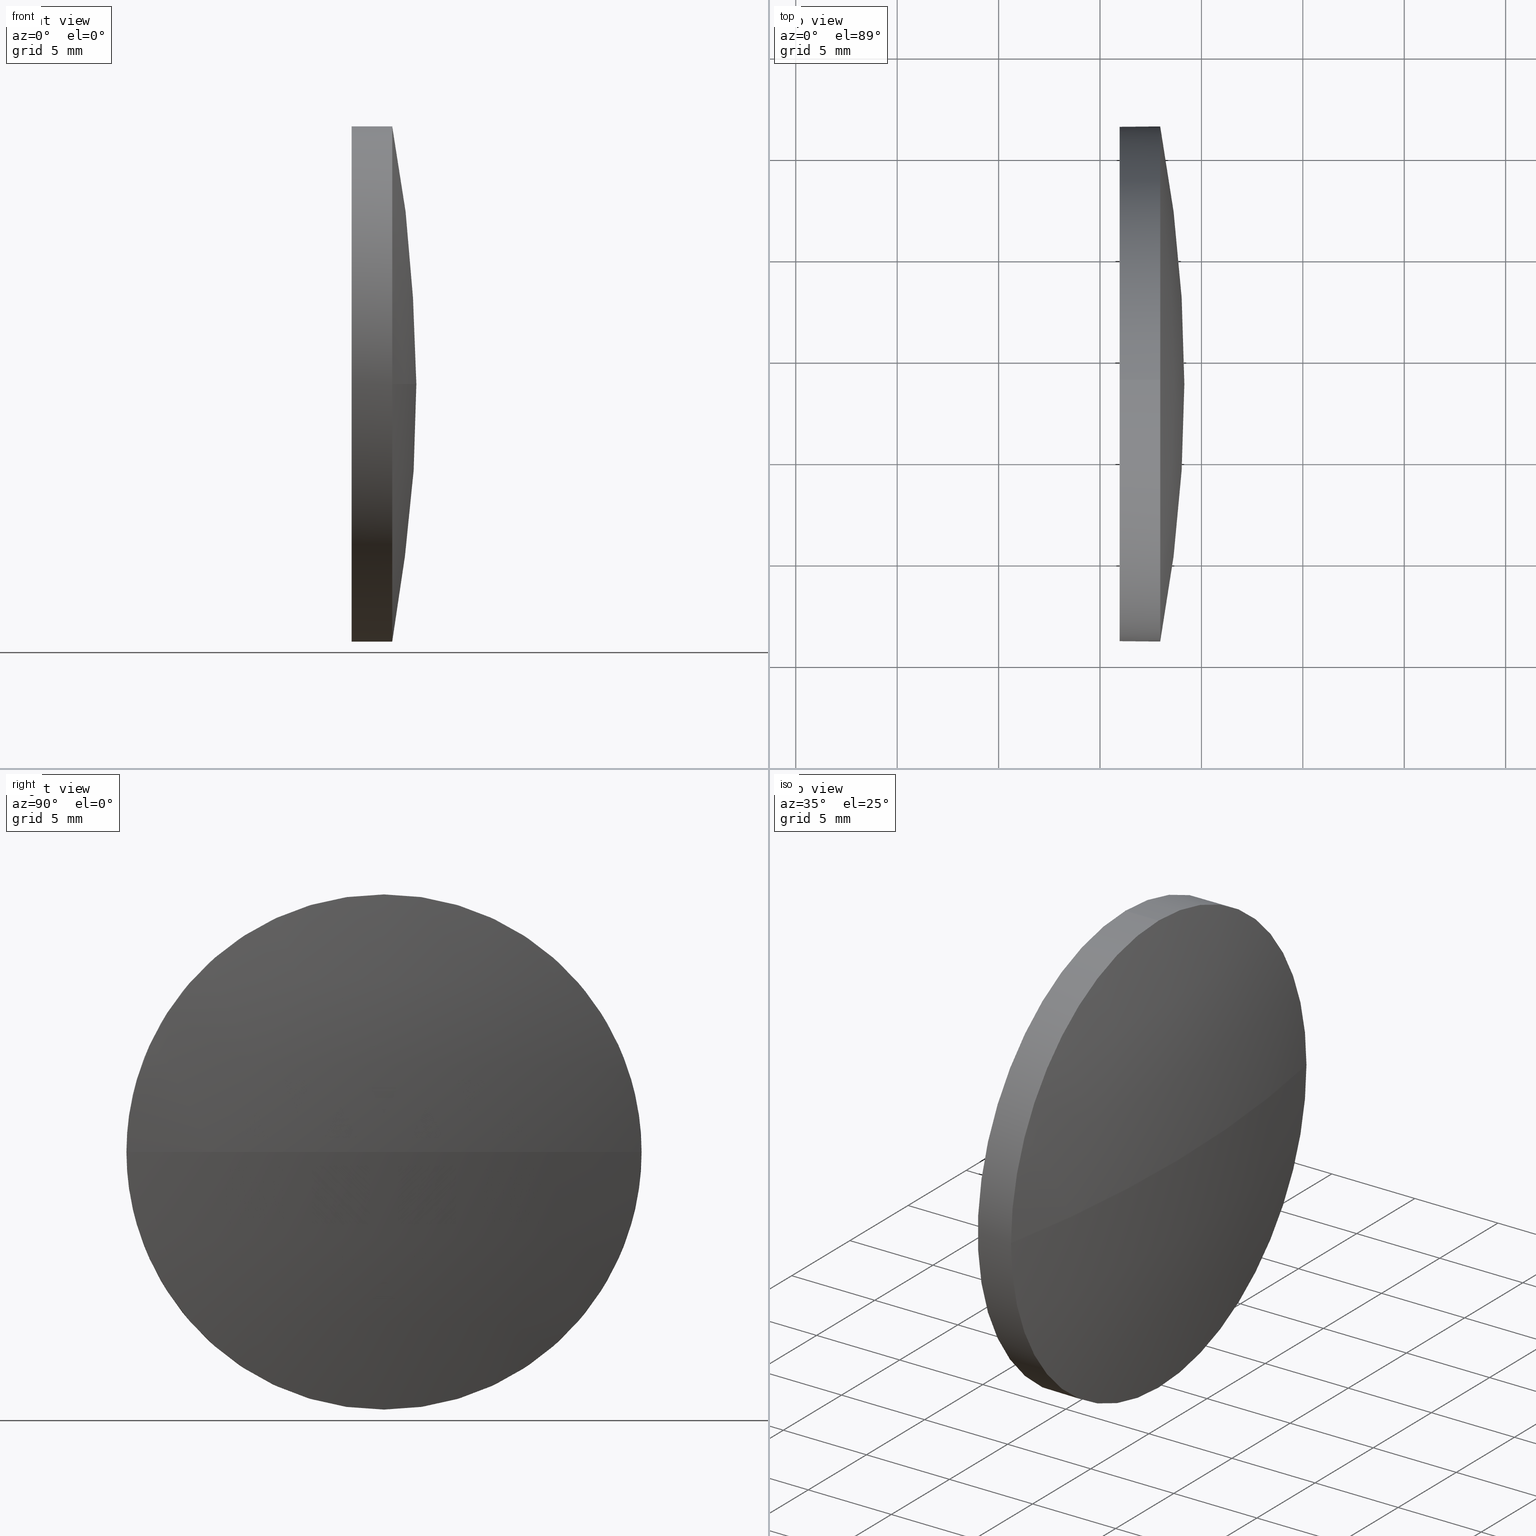
[diagram: canonical four-view strip — front | top / right | iso, engineering-drawing reading convention]
A machine part, canonical four-view strip (front | top / right | iso — engineering-drawing reading convention). The complete STEP part file that produces these views, byte-faithful:
ISO-10303-21;
HEADER;
FILE_DESCRIPTION (( 'STEP AP214' ),
    '1' );
FILE_NAME ('100377.STEP',
    '2019-06-04T06:58:32',
    ( '' ),
    ( '' ),
    'SwSTEP 2.0',
    'SolidWorks 2016',
    '' );
FILE_SCHEMA (( 'AUTOMOTIVE_DESIGN' ));
ENDSEC;

DATA;
#1 =( GEOMETRIC_REPRESENTATION_CONTEXT ( 3 ) GLOBAL_UNCERTAINTY_ASSIGNED_CONTEXT ( ( #128 ) ) GLOBAL_UNIT_ASSIGNED_CONTEXT ( ( #167, #92, #14 ) ) REPRESENTATION_CONTEXT ( 'NONE', 'WORKASPACE' ) );
#2 = EDGE_LOOP ( 'NONE', ( #68, #12, #100, #22, #185 ) ) ;
#3 = CIRCLE ( 'NONE', #67, 68.36390756302523600 ) ;
#4 = PRESENTATION_LAYER_ASSIGNMENT (  '', '', ( #24 ) ) ;
#5 = ORIENTED_EDGE ( 'NONE', *, *, #27, .F. ) ;
#6 = DIRECTION ( 'NONE',  ( 0.0000000000000000000, -1.224646799147353200E-016, 1.000000000000000000 ) ) ;
#7 = ORIENTED_EDGE ( 'NONE', *, *, #141, .F. ) ;
#8 = CARTESIAN_POINT ( 'NONE',  ( 610.2638272771673700, 203.7470888787178500, 12.70000000000001700 ) ) ;
#9 = AXIS2_PLACEMENT_3D ( 'NONE', #133, #177, #21 ) ;
#10 = CARTESIAN_POINT ( 'NONE',  ( 617.9685008246222000, 203.7470888787178500, -12.70000000000001700 ) ) ;
#11 = MANIFOLD_SOLID_BREP ( '��ת1', #32 ) ;
#12 = ORIENTED_EDGE ( 'NONE', *, *, #69, .T. ) ;
#13 = DIRECTION ( 'NONE',  ( -1.000000000000000000, -0.0000000000000000000, -0.0000000000000000000 ) ) ;
#14 =( NAMED_UNIT ( * ) SI_UNIT ( $, .STERADIAN. ) SOLID_ANGLE_UNIT ( ) );
#15 = DIRECTION ( 'NONE',  ( -1.000000000000000000, 0.0000000000000000000, 0.0000000000000000000 ) ) ;
#16 = CARTESIAN_POINT ( 'NONE',  ( 610.2638272771673700, 203.7470888787178500, 0.0000000000000000000 ) ) ;
#17 = DIRECTION ( 'NONE',  ( 0.0000000000000000000, 0.0000000000000000000, -1.000000000000000000 ) ) ;
#18 = FACE_OUTER_BOUND ( 'NONE', #2, .T. ) ;
#19 = CARTESIAN_POINT ( 'NONE',  ( 615.9685008246222000, 203.7470888787178500, 12.70000000000001700 ) ) ;
#20 = EDGE_CURVE ( 'NONE', #103, #181, #115, .T. ) ;
#21 = DIRECTION ( 'NONE',  ( 0.0000000000000000000, 0.0000000000000000000, 1.000000000000000000 ) ) ;
#22 = ORIENTED_EDGE ( 'NONE', *, *, #112, .F. ) ;
#23 = PRESENTATION_STYLE_ASSIGNMENT (( #60 ) ) ;
#24 = STYLED_ITEM ( 'NONE', ( #81 ), #11 ) ;
#25 = PLANE ( 'NONE',  #146 ) ;
#26 = FILL_AREA_STYLE_COLOUR ( '', #44 ) ;
#27 = EDGE_CURVE ( 'NONE', #150, #35, #111, .T. ) ;
#28 = ADVANCED_BREP_SHAPE_REPRESENTATION ( '100377', ( #11, #122 ), #110 ) ;
#29 = VECTOR ( 'NONE', #87, 1000.000000000000000 ) ;
#30 = ORIENTED_EDGE ( 'NONE', *, *, #40, .F. ) ;
#31 = SURFACE_STYLE_USAGE ( .BOTH. , #161 ) ;
#32 = CLOSED_SHELL ( 'NONE', ( #170, #173, #97, #144, #184 ) ) ;
#33 = DIRECTION ( 'NONE',  ( 0.0000000000000000000, -1.000000000000000000, -1.224646799147353000E-016 ) ) ;
#34 = DIRECTION ( 'NONE',  ( 0.0000000000000000000, -1.000000000000000000, 0.0000000000000000000 ) ) ;
#35 = VERTEX_POINT ( 'NONE', #179 ) ;
#36 = DIRECTION ( 'NONE',  ( 1.000000000000000000, 0.0000000000000000000, 0.0000000000000000000 ) ) ;
#37 = CARTESIAN_POINT ( 'NONE',  ( 617.9685008246222000, 203.7470888787178500, 0.0000000000000000000 ) ) ;
#38 = CARTESIAN_POINT ( 'NONE',  ( 617.9685008246222000, 203.7470888787178500, 0.0000000000000000000 ) ) ;
#39 = VECTOR ( 'NONE', #178, 1000.000000000000000 ) ;
#40 = EDGE_CURVE ( 'NONE', #43, #85, #156, .T. ) ;
#41 = MECHANICAL_DESIGN_GEOMETRIC_PRESENTATION_REPRESENTATION (  '', ( #24 ), #46 ) ;
#42 = EDGE_LOOP ( 'NONE', ( #175, #96 ) ) ;
#43 = VERTEX_POINT ( 'NONE', #48 ) ;
#44 = COLOUR_RGB ( '',1.000000000000000000, 1.000000000000000000, 1.000000000000000000 ) ;
#45 = ORIENTED_EDGE ( 'NONE', *, *, #174, .T. ) ;
#46 =( GEOMETRIC_REPRESENTATION_CONTEXT ( 3 ) GLOBAL_UNCERTAINTY_ASSIGNED_CONTEXT ( ( #155 ) ) GLOBAL_UNIT_ASSIGNED_CONTEXT ( ( #160, #132, #149 ) ) REPRESENTATION_CONTEXT ( 'NONE', 'WORKASPACE' ) );
#47 = COLOUR_RGB ( '',1.000000000000000000, 1.000000000000000000, 1.000000000000000000 ) ;
#48 = CARTESIAN_POINT ( 'NONE',  ( 615.9685008246222000, 203.7470888787178500, -12.70000000000001700 ) ) ;
#49 = AXIS2_PLACEMENT_3D ( 'NONE', #72, #71, #147 ) ;
#50 = DIRECTION ( 'NONE',  ( -1.000000000000000000, -0.0000000000000000000, -0.0000000000000000000 ) ) ;
#51 = APPLICATION_PROTOCOL_DEFINITION ( 'draft international standard', 'automotive_design', 1998, #140 ) ;
#52 = CARTESIAN_POINT ( 'NONE',  ( 617.9685008246222000, 216.4470888787178900, 1.555301434917140000E-015 ) ) ;
#53 = DIRECTION ( 'NONE',  ( 0.0000000000000000000, 0.0000000000000000000, -1.000000000000000000 ) ) ;
#54 = ORIENTED_EDGE ( 'NONE', *, *, #98, .F. ) ;
#55 = CYLINDRICAL_SURFACE ( 'NONE', #139, 12.70000000000001700 ) ;
#56 = CIRCLE ( 'NONE', #65, 12.70000000000001700 ) ;
#57 = PRODUCT_DEFINITION_SHAPE ( 'NONE', 'NONE',  #130 ) ;
#58 = ORIENTED_EDGE ( 'NONE', *, *, #112, .T. ) ;
#59 = SPHERICAL_SURFACE ( 'NONE', #49, 68.36390756302522200 ) ;
#60 = SURFACE_STYLE_USAGE ( .BOTH. , #151 ) ;
#61 = DIRECTION ( 'NONE',  ( -1.000000000000000000, -0.0000000000000000000, -0.0000000000000000000 ) ) ;
#62 = CARTESIAN_POINT ( 'NONE',  ( 615.9685008246222000, 203.7470888787178500, 0.0000000000000000000 ) ) ;
#63 = AXIS2_PLACEMENT_3D ( 'NONE', #104, #118, #136 ) ;
#64 =( LENGTH_UNIT ( ) NAMED_UNIT ( * ) SI_UNIT ( .MILLI., .METRE. ) );
#65 = AXIS2_PLACEMENT_3D ( 'NONE', #134, #162, #70 ) ;
#66 = LINE ( 'NONE', #86, #29 ) ;
#67 = AXIS2_PLACEMENT_3D ( 'NONE', #93, #17, #15 ) ;
#68 = ORIENTED_EDGE ( 'NONE', *, *, #141, .T. ) ;
#69 = EDGE_CURVE ( 'NONE', #114, #43, #66, .T. ) ;
#70 = DIRECTION ( 'NONE',  ( 0.0000000000000000000, 0.0000000000000000000, 1.000000000000000000 ) ) ;
#71 = DIRECTION ( 'NONE',  ( 0.0000000000000000000, 0.0000000000000000000, 1.000000000000000000 ) ) ;
#72 = CARTESIAN_POINT ( 'NONE',  ( 550.7945932615970200, 203.7470888787179000, 0.0000000000000000000 ) ) ;
#73 = LINE ( 'NONE', #8, #39 ) ;
#74 = FACE_OUTER_BOUND ( 'NONE', #42, .T. ) ;
#75 = DIRECTION ( 'NONE',  ( 0.0000000000000000000, 0.0000000000000000000, 1.000000000000000000 ) ) ;
#76 = CARTESIAN_POINT ( 'NONE',  ( 550.7945932615970200, 203.7470888787179000, 0.0000000000000000000 ) ) ;
#77 = PRODUCT_CONTEXT ( 'NONE', #140, 'mechanical' ) ;
#78 = ORIENTED_EDGE ( 'NONE', *, *, #117, .F. ) ;
#79 = CYLINDRICAL_SURFACE ( 'NONE', #116, 12.70000000000001700 ) ;
#80 = APPLICATION_PROTOCOL_DEFINITION ( 'draft international standard', 'automotive_design', 1998, #94 ) ;
#81 = PRESENTATION_STYLE_ASSIGNMENT (( #31 ) ) ;
#82 = SPHERICAL_SURFACE ( 'NONE', #102, 68.36390756302522200 ) ;
#83 = PRODUCT_DEFINITION_FORMATION_WITH_SPECIFIED_SOURCE ( '�κ�', '', #121, .NOT_KNOWN. ) ;
#84 = UNCERTAINTY_MEASURE_WITH_UNIT (LENGTH_MEASURE( 1.000000000000000100E-005 ), #64, 'distance_accuracy_value', 'NONE');
#85 = VERTEX_POINT ( 'NONE', #19 ) ;
#86 = CARTESIAN_POINT ( 'NONE',  ( 610.2638272771673700, 203.7470888787178500, -12.70000000000001700 ) ) ;
#87 = DIRECTION ( 'NONE',  ( -1.000000000000000000, -0.0000000000000000000, -0.0000000000000000000 ) ) ;
#88 = PRODUCT_RELATED_PRODUCT_CATEGORY ( 'part', '', ( #121 ) ) ;
#89 = EDGE_LOOP ( 'NONE', ( #123, #113, #54, #5 ) ) ;
#90 = CIRCLE ( 'NONE', #157, 12.70000000000001700 ) ;
#91 = FILL_AREA_STYLE ('',( #26 ) ) ;
#92 =( NAMED_UNIT ( * ) PLANE_ANGLE_UNIT ( ) SI_UNIT ( $, .RADIAN. ) );
#93 = CARTESIAN_POINT ( 'NONE',  ( 550.7945932615970200, 203.7470888787179000, 0.0000000000000000000 ) ) ;
#94 = APPLICATION_CONTEXT ( 'automotive_design' ) ;
#95 = STYLED_ITEM ( 'NONE', ( #23 ), #28 ) ;
#96 = ORIENTED_EDGE ( 'NONE', *, *, #40, .T. ) ;
#97 = ADVANCED_FACE ( 'NONE', ( #99 ), #59, .T. ) ;
#98 = EDGE_CURVE ( 'NONE', #35, #181, #56, .T. ) ;
#99 = FACE_OUTER_BOUND ( 'NONE', #107, .T. ) ;
#100 = ORIENTED_EDGE ( 'NONE', *, *, #180, .F. ) ;
#101 = SURFACE_STYLE_FILL_AREA ( #91 ) ;
#102 = AXIS2_PLACEMENT_3D ( 'NONE', #76, #142, #34 ) ;
#103 = VERTEX_POINT ( 'NONE', #164 ) ;
#104 = CARTESIAN_POINT ( 'NONE',  ( 617.9685008246222000, 203.7470888787178500, 0.0000000000000000000 ) ) ;
#105 = DIRECTION ( 'NONE',  ( 0.0000000000000000000, 0.0000000000000000000, 1.000000000000000000 ) ) ;
#106 = AXIS2_PLACEMENT_3D ( 'NONE', #37, #109, #153 ) ;
#107 = EDGE_LOOP ( 'NONE', ( #165, #45, #78, #7 ) ) ;
#108 =( NAMED_UNIT ( * ) PLANE_ANGLE_UNIT ( ) SI_UNIT ( $, .RADIAN. ) );
#109 = DIRECTION ( 'NONE',  ( -1.000000000000000000, -0.0000000000000000000, -0.0000000000000000000 ) ) ;
#110 =( GEOMETRIC_REPRESENTATION_CONTEXT ( 3 ) GLOBAL_UNCERTAINTY_ASSIGNED_CONTEXT ( ( #84 ) ) GLOBAL_UNIT_ASSIGNED_CONTEXT ( ( #64, #108, #169 ) ) REPRESENTATION_CONTEXT ( 'NONE', 'WORKASPACE' ) );
#111 = CIRCLE ( 'NONE', #63, 12.70000000000001700 ) ;
#112 = EDGE_CURVE ( 'NONE', #35, #85, #73, .T. ) ;
#113 = ORIENTED_EDGE ( 'NONE', *, *, #20, .T. ) ;
#114 = VERTEX_POINT ( 'NONE', #10 ) ;
#115 = CIRCLE ( 'NONE', #154, 68.36390756302523600 ) ;
#116 = AXIS2_PLACEMENT_3D ( 'NONE', #182, #61, #126 ) ;
#117 = EDGE_CURVE ( 'NONE', #114, #150, #159, .T. ) ;
#118 = DIRECTION ( 'NONE',  ( -1.000000000000000000, -0.0000000000000000000, -0.0000000000000000000 ) ) ;
#119 = ORIENTED_EDGE ( 'NONE', *, *, #117, .T. ) ;
#120 = FILL_AREA_STYLE_COLOUR ( '', #47 ) ;
#121 = PRODUCT ( '100377', '100377', '', ( #77 ) ) ;
#122 = AXIS2_PLACEMENT_3D ( 'NONE', #138, #125, #36 ) ;
#123 = ORIENTED_EDGE ( 'NONE', *, *, #174, .F. ) ;
#124 = DIRECTION ( 'NONE',  ( 0.0000000000000000000, 0.0000000000000000000, 1.000000000000000000 ) ) ;
#125 = DIRECTION ( 'NONE',  ( 0.0000000000000000000, 0.0000000000000000000, 1.000000000000000000 ) ) ;
#126 = DIRECTION ( 'NONE',  ( 0.0000000000000000000, 0.0000000000000000000, 1.000000000000000000 ) ) ;
#127 = DIRECTION ( 'NONE',  ( 1.000000000000000000, 0.0000000000000000000, 0.0000000000000000000 ) ) ;
#128 = UNCERTAINTY_MEASURE_WITH_UNIT (LENGTH_MEASURE( 1.000000000000000100E-005 ), #167, 'distance_accuracy_value', 'NONE');
#129 = AXIS2_PLACEMENT_3D ( 'NONE', #168, #50, #75 ) ;
#130 = PRODUCT_DEFINITION ( 'δ֪', '', #83, #163 ) ;
#131 = ORIENTED_EDGE ( 'NONE', *, *, #27, .T. ) ;
#132 =( NAMED_UNIT ( * ) PLANE_ANGLE_UNIT ( ) SI_UNIT ( $, .RADIAN. ) );
#133 = CARTESIAN_POINT ( 'NONE',  ( 615.9685008246222000, 203.7470888787178500, 0.0000000000000000000 ) ) ;
#134 = CARTESIAN_POINT ( 'NONE',  ( 617.9685008246222000, 203.7470888787178500, 0.0000000000000000000 ) ) ;
#135 = FACE_OUTER_BOUND ( 'NONE', #172, .T. ) ;
#136 = DIRECTION ( 'NONE',  ( 0.0000000000000000000, 0.0000000000000000000, 1.000000000000000000 ) ) ;
#137 = CARTESIAN_POINT ( 'NONE',  ( 550.7945932615970200, 203.7470888787179000, 0.0000000000000000000 ) ) ;
#138 = CARTESIAN_POINT ( 'NONE',  ( 0.0000000000000000000, 0.0000000000000000000, 0.0000000000000000000 ) ) ;
#139 = AXIS2_PLACEMENT_3D ( 'NONE', #16, #143, #105 ) ;
#140 = APPLICATION_CONTEXT ( 'automotive_design' ) ;
#141 = EDGE_CURVE ( 'NONE', #181, #114, #90, .T. ) ;
#142 = DIRECTION ( 'NONE',  ( 0.0000000000000000000, 0.0000000000000000000, 1.000000000000000000 ) ) ;
#143 = DIRECTION ( 'NONE',  ( -1.000000000000000000, -0.0000000000000000000, -0.0000000000000000000 ) ) ;
#144 = ADVANCED_FACE ( 'NONE', ( #135 ), #79, .T. ) ;
#145 = SHAPE_DEFINITION_REPRESENTATION ( #57, #28 ) ;
#146 = AXIS2_PLACEMENT_3D ( 'NONE', #62, #127, #53 ) ;
#147 = DIRECTION ( 'NONE',  ( 0.0000000000000000000, -1.000000000000000000, 0.0000000000000000000 ) ) ;
#148 = FILL_AREA_STYLE ('',( #120 ) ) ;
#149 =( NAMED_UNIT ( * ) SI_UNIT ( $, .STERADIAN. ) SOLID_ANGLE_UNIT ( ) );
#150 = VERTEX_POINT ( 'NONE', #152 ) ;
#151 = SURFACE_SIDE_STYLE ('',( #101 ) ) ;
#152 = CARTESIAN_POINT ( 'NONE',  ( 617.9685008246222000, 191.0470888787178600, 0.0000000000000000000 ) ) ;
#153 = DIRECTION ( 'NONE',  ( 0.0000000000000000000, 0.0000000000000000000, 1.000000000000000000 ) ) ;
#154 = AXIS2_PLACEMENT_3D ( 'NONE', #137, #6, #33 ) ;
#155 = UNCERTAINTY_MEASURE_WITH_UNIT (LENGTH_MEASURE( 1.000000000000000100E-005 ), #160, 'distance_accuracy_value', 'NONE');
#156 = CIRCLE ( 'NONE', #9, 12.70000000000001700 ) ;
#157 = AXIS2_PLACEMENT_3D ( 'NONE', #38, #13, #124 ) ;
#158 = ORIENTED_EDGE ( 'NONE', *, *, #69, .F. ) ;
#159 = CIRCLE ( 'NONE', #106, 12.70000000000001700 ) ;
#160 =( LENGTH_UNIT ( ) NAMED_UNIT ( * ) SI_UNIT ( .MILLI., .METRE. ) );
#161 = SURFACE_SIDE_STYLE ('',( #183 ) ) ;
#162 = DIRECTION ( 'NONE',  ( -1.000000000000000000, -0.0000000000000000000, -0.0000000000000000000 ) ) ;
#163 = PRODUCT_DEFINITION_CONTEXT ( 'detailed design', #94, 'design' ) ;
#164 = CARTESIAN_POINT ( 'NONE',  ( 619.1585008246222500, 203.7470888787179000, 0.0000000000000000000 ) ) ;
#165 = ORIENTED_EDGE ( 'NONE', *, *, #20, .F. ) ;
#166 = FACE_OUTER_BOUND ( 'NONE', #89, .T. ) ;
#167 =( LENGTH_UNIT ( ) NAMED_UNIT ( * ) SI_UNIT ( .MILLI., .METRE. ) );
#168 = CARTESIAN_POINT ( 'NONE',  ( 615.9685008246222000, 203.7470888787178500, 0.0000000000000000000 ) ) ;
#169 =( NAMED_UNIT ( * ) SI_UNIT ( $, .STERADIAN. ) SOLID_ANGLE_UNIT ( ) );
#170 = ADVANCED_FACE ( 'NONE', ( #18 ), #55, .T. ) ;
#171 = PRESENTATION_LAYER_ASSIGNMENT (  '', '', ( #95 ) ) ;
#172 = EDGE_LOOP ( 'NONE', ( #158, #119, #131, #58, #30 ) ) ;
#173 = ADVANCED_FACE ( 'NONE', ( #166 ), #82, .T. ) ;
#174 = EDGE_CURVE ( 'NONE', #103, #150, #3, .T. ) ;
#175 = ORIENTED_EDGE ( 'NONE', *, *, #180, .T. ) ;
#176 = MECHANICAL_DESIGN_GEOMETRIC_PRESENTATION_REPRESENTATION (  '', ( #95 ), #1 ) ;
#177 = DIRECTION ( 'NONE',  ( -1.000000000000000000, -0.0000000000000000000, -0.0000000000000000000 ) ) ;
#178 = DIRECTION ( 'NONE',  ( -1.000000000000000000, -0.0000000000000000000, -0.0000000000000000000 ) ) ;
#179 = CARTESIAN_POINT ( 'NONE',  ( 617.9685008246222000, 203.7470888787178500, 12.70000000000001700 ) ) ;
#180 = EDGE_CURVE ( 'NONE', #85, #43, #186, .T. ) ;
#181 = VERTEX_POINT ( 'NONE', #52 ) ;
#182 = CARTESIAN_POINT ( 'NONE',  ( 610.2638272771673700, 203.7470888787178500, 0.0000000000000000000 ) ) ;
#183 = SURFACE_STYLE_FILL_AREA ( #148 ) ;
#184 = ADVANCED_FACE ( 'NONE', ( #74 ), #25, .F. ) ;
#185 = ORIENTED_EDGE ( 'NONE', *, *, #98, .T. ) ;
#186 = CIRCLE ( 'NONE', #129, 12.70000000000001700 ) ;
ENDSEC;
END-ISO-10303-21;
